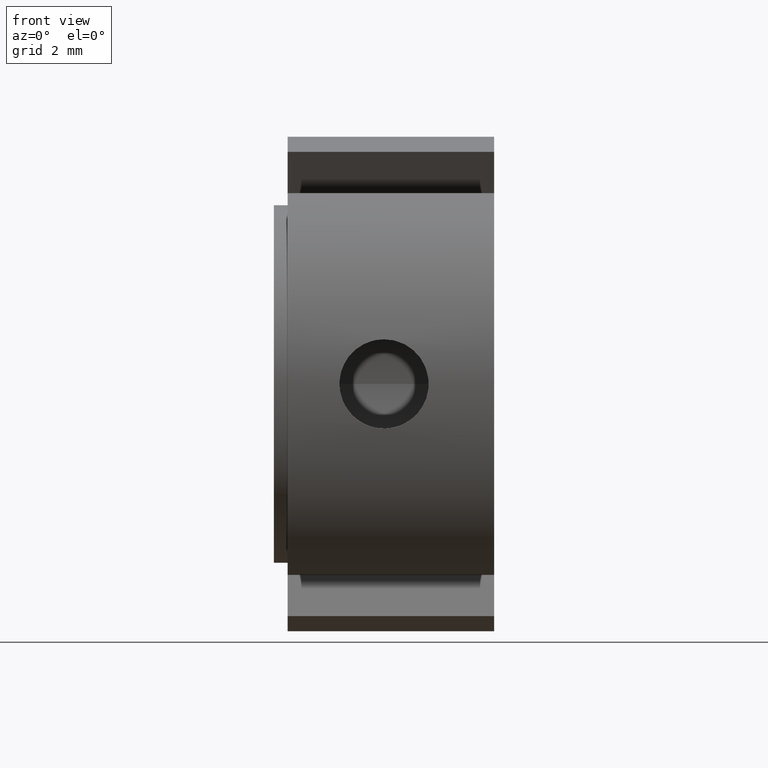
[diagram: clean part render]
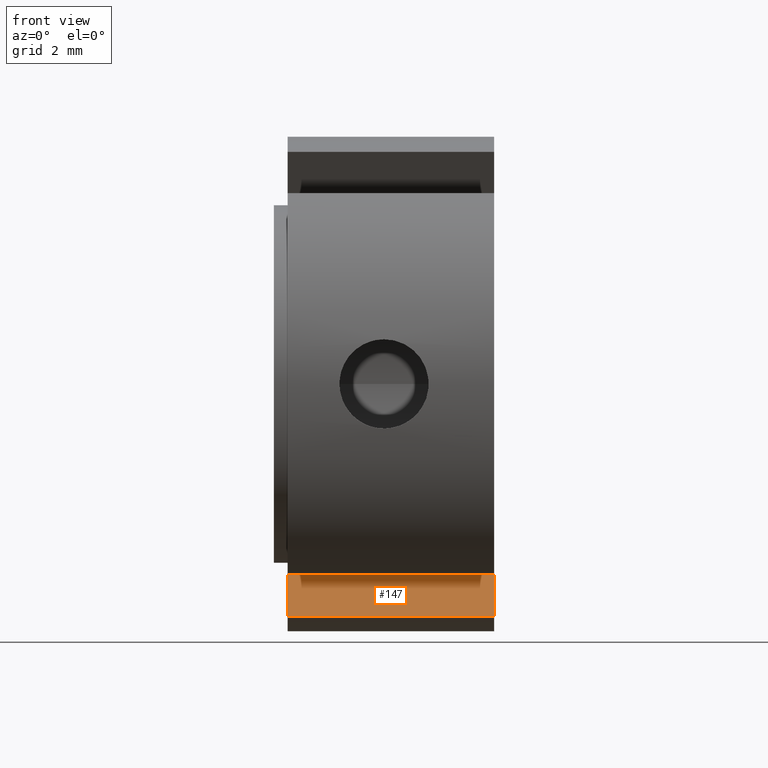
[diagram: same view with one face highlighted and labeled with its STEP entity id]
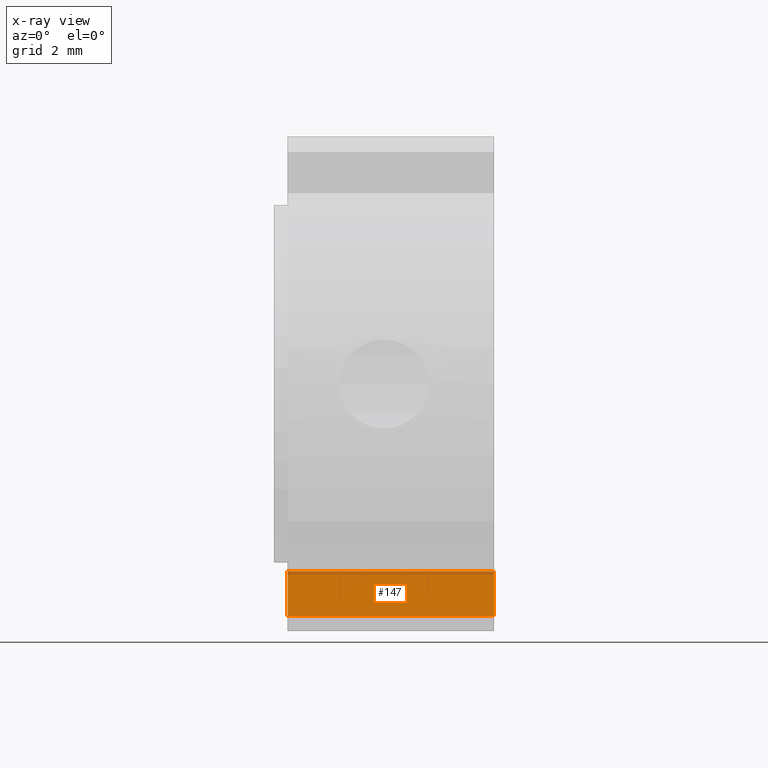
[diagram: x-ray of the same camera — body ghosted, the highlighted face saturated]
A machine part, front view. The second image highlights one B-rep face of the part: STEP entity #147.
The next image is the same camera in x-ray: the body ghosted, the highlighted face saturated — about 7% of this face is hidden behind the body in this view.
In plain terms, the highlighted planar face has unit normal (0, 0.866, -0.5).
Its self-contained STEP definition (entity closure, byte-faithful):
#108=CARTESIAN_POINT('',(7.999999999999997,-3.200961894323346,-8.544228634059945));
#109=DIRECTION('',(0.0,0.866025403784438,-0.500000000000001));
#110=DIRECTION('',(1.0,0.0,0.0));
#111=AXIS2_PLACEMENT_3D('',#108,#109,#110);
#112=PLANE('',#111);
#113=CARTESIAN_POINT('',(0.499999999999998,-3.138021731648057,-8.435213074469697));
#114=VERTEX_POINT('',#113);
#115=CARTESIAN_POINT('',(0.499999999999998,-2.200961894323345,-6.812177826491068));
#116=VERTEX_POINT('',#115);
#117=CARTESIAN_POINT('',(0.499999999999999,-3.138021731648059,-8.435213074469697));
#118=DIRECTION('',(0.0,0.500000000000000,0.866025403784438));
#119=VECTOR('',#118,1.874119674649425);
#120=LINE('',#117,#119);
#121=EDGE_CURVE('',#114,#116,#120,.T.);
#122=ORIENTED_EDGE('',*,*,#121,.F.);
#123=CARTESIAN_POINT('',(7.999999999999997,-3.138021731648057,-8.435213074469697));
#124=VERTEX_POINT('',#123);
#125=CARTESIAN_POINT('',(7.999999999999997,-3.138021731648057,-8.435213074469694));
#126=DIRECTION('',(-1.0,0.0,0.0));
#127=VECTOR('',#126,7.499999999999999);
#128=LINE('',#125,#127);
#129=EDGE_CURVE('',#124,#114,#128,.T.);
#130=ORIENTED_EDGE('',*,*,#129,.F.);
#131=CARTESIAN_POINT('',(7.999999999999997,-2.200961894323345,-6.812177826491068));
#132=VERTEX_POINT('',#131);
#133=CARTESIAN_POINT('',(7.999999999999997,-2.200961894323346,-6.812177826491069));
#134=DIRECTION('',(0.0,-0.500000000000000,-0.866025403784438));
#135=VECTOR('',#134,1.874119674649425);
#136=LINE('',#133,#135);
#137=EDGE_CURVE('',#132,#124,#136,.T.);
#138=ORIENTED_EDGE('',*,*,#137,.F.);
#139=CARTESIAN_POINT('',(7.999999999999997,-2.200961894323345,-6.812177826491068));
#140=DIRECTION('',(-1.0,0.0,0.0));
#141=VECTOR('',#140,7.499999999999999);
#142=LINE('',#139,#141);
#143=EDGE_CURVE('',#132,#116,#142,.T.);
#144=ORIENTED_EDGE('',*,*,#143,.T.);
#145=EDGE_LOOP('',(#122,#130,#138,#144));
#146=FACE_OUTER_BOUND('',#145,.T.);
#147=ADVANCED_FACE('',(#146),#112,.F.);